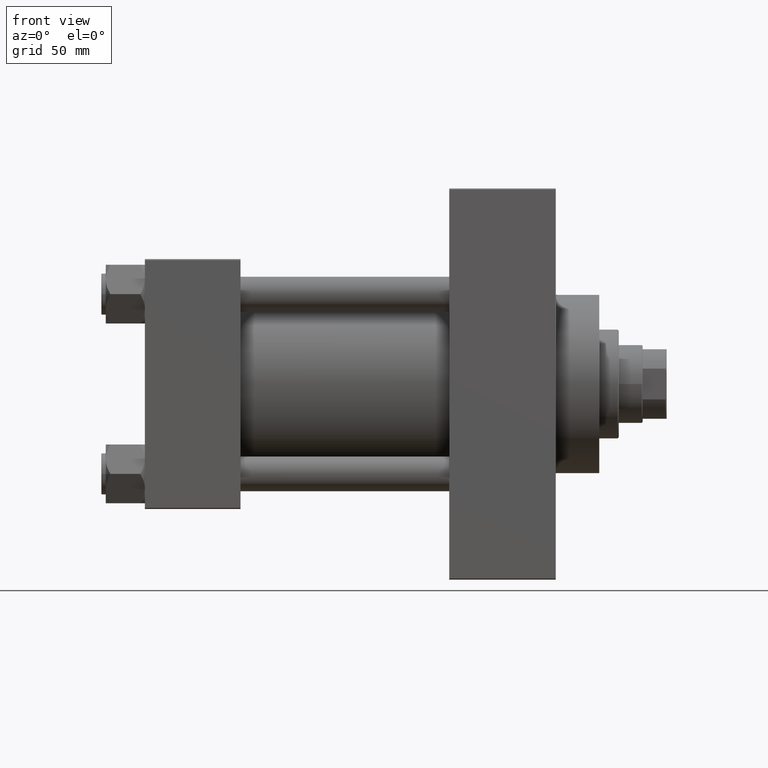
[diagram: clean part render]
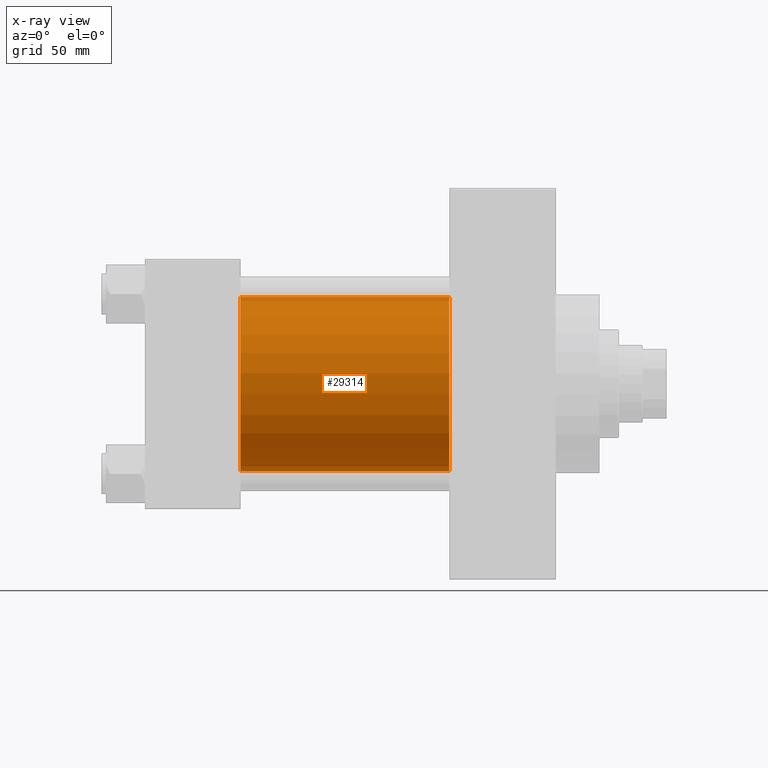
[diagram: x-ray — body ghosted, one internal face saturated and labeled with its STEP entity id]
A machine part, front view, then the same camera in x-ray: the body is ghosted and one INTERNAL B-rep face — a face not visible from any outside direction — is saturated and labeled: STEP entity #29314.
In plain terms, the highlighted cylindrical surface (partial cylindrical patch) has radius 40 mm, axis along (-1, -0, -0).
Its self-contained STEP definition (entity closure, byte-faithful):
#222 = VERTEX_POINT ( 'NONE', #37138 ) ;
#3396 = ORIENTED_EDGE ( 'NONE', *, *, #19098, .F. ) ;
#3776 = AXIS2_PLACEMENT_3D ( 'NONE', #20493, #12796, #34941 ) ;
#7808 = EDGE_LOOP ( 'NONE', ( #8942, #44547, #3396, #40889 ) ) ;
#8144 = CARTESIAN_POINT ( 'NONE',  ( 140.0000000000000000, 2.296501982624201990E-15, -40.00000000000000000 ) ) ;
#8942 = ORIENTED_EDGE ( 'NONE', *, *, #9592, .T. ) ;
#9241 = DIRECTION ( 'NONE',  ( 0.000000000000000000, 0.000000000000000000, -1.000000000000000000 ) ) ;
#9521 = FACE_OUTER_BOUND ( 'NONE', #7808, .T. ) ;
#9592 = EDGE_CURVE ( 'NONE', #42134, #40826, #13775, .T. ) ;
#9711 = DIRECTION ( 'NONE',  ( 1.000000000000000000, 0.000000000000000000, 0.000000000000000000 ) ) ;
#12796 = DIRECTION ( 'NONE',  ( 1.000000000000000000, 0.000000000000000000, 0.000000000000000000 ) ) ;
#13326 = CARTESIAN_POINT ( 'NONE',  ( 44.00000000000000000, -2.602085213965210642E-15, 0.000000000000000000 ) ) ;
#13775 = CIRCLE ( 'NONE', #3776, 40.00000000000000000 ) ;
#13878 = CARTESIAN_POINT ( 'NONE',  ( 140.0000000000000000, 2.296501982624201990E-15, -40.00000000000000000 ) ) ;
#17048 = DIRECTION ( 'NONE',  ( -1.000000000000000000, -0.000000000000000000, -0.000000000000000000 ) ) ;
#19098 = EDGE_CURVE ( 'NONE', #222, #38359, #44002, .T. ) ;
#20493 = CARTESIAN_POINT ( 'NONE',  ( 140.0000000000000000, -2.602085213965210642E-15, 0.000000000000000000 ) ) ;
#20661 = CARTESIAN_POINT ( 'NONE',  ( 140.0000000000000000, -2.602085213965210642E-15, 40.00000000000000000 ) ) ;
#21265 = CARTESIAN_POINT ( 'NONE',  ( 44.00000000000000000, 2.296501982624201990E-15, -40.00000000000000000 ) ) ;
#23236 = AXIS2_PLACEMENT_3D ( 'NONE', #13326, #9711, #9241 ) ;
#24213 = CYLINDRICAL_SURFACE ( 'NONE', #38833, 40.00000000000000000 ) ;
#24691 = DIRECTION ( 'NONE',  ( 0.000000000000000000, 0.000000000000000000, 1.000000000000000000 ) ) ;
#25851 = CARTESIAN_POINT ( 'NONE',  ( 140.0000000000000000, -2.602085213965210642E-15, 40.00000000000000000 ) ) ;
#26593 = EDGE_CURVE ( 'NONE', #42134, #222, #31733, .T. ) ;
#27399 = LINE ( 'NONE', #8144, #38078 ) ;
#29314 = ADVANCED_FACE ( 'NONE', ( #9521 ), #24213, .F. ) ;
#29531 = EDGE_CURVE ( 'NONE', #40826, #38359, #27399, .T. ) ;
#31733 = LINE ( 'NONE', #20661, #44994 ) ;
#34941 = DIRECTION ( 'NONE',  ( 0.000000000000000000, 0.000000000000000000, -1.000000000000000000 ) ) ;
#37138 = CARTESIAN_POINT ( 'NONE',  ( 44.00000000000000000, -2.602085213965210642E-15, 40.00000000000000000 ) ) ;
#38078 = VECTOR ( 'NONE', #42088, 1000.000000000000000 ) ;
#38359 = VERTEX_POINT ( 'NONE', #21265 ) ;
#38833 = AXIS2_PLACEMENT_3D ( 'NONE', #39372, #39601, #24691 ) ;
#39372 = CARTESIAN_POINT ( 'NONE',  ( 140.0000000000000000, -2.602085213965210642E-15, 0.000000000000000000 ) ) ;
#39601 = DIRECTION ( 'NONE',  ( -1.000000000000000000, -0.000000000000000000, -0.000000000000000000 ) ) ;
#40826 = VERTEX_POINT ( 'NONE', #13878 ) ;
#40889 = ORIENTED_EDGE ( 'NONE', *, *, #26593, .F. ) ;
#42088 = DIRECTION ( 'NONE',  ( -1.000000000000000000, -0.000000000000000000, -0.000000000000000000 ) ) ;
#42134 = VERTEX_POINT ( 'NONE', #25851 ) ;
#44002 = CIRCLE ( 'NONE', #23236, 40.00000000000000000 ) ;
#44547 = ORIENTED_EDGE ( 'NONE', *, *, #29531, .T. ) ;
#44994 = VECTOR ( 'NONE', #17048, 1000.000000000000000 ) ;